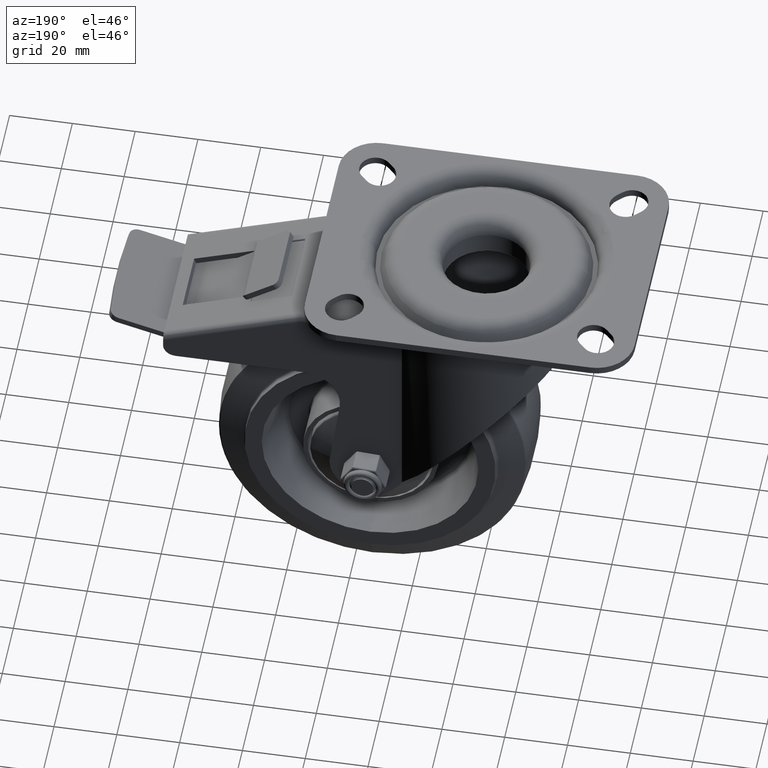
[diagram: clean part render]
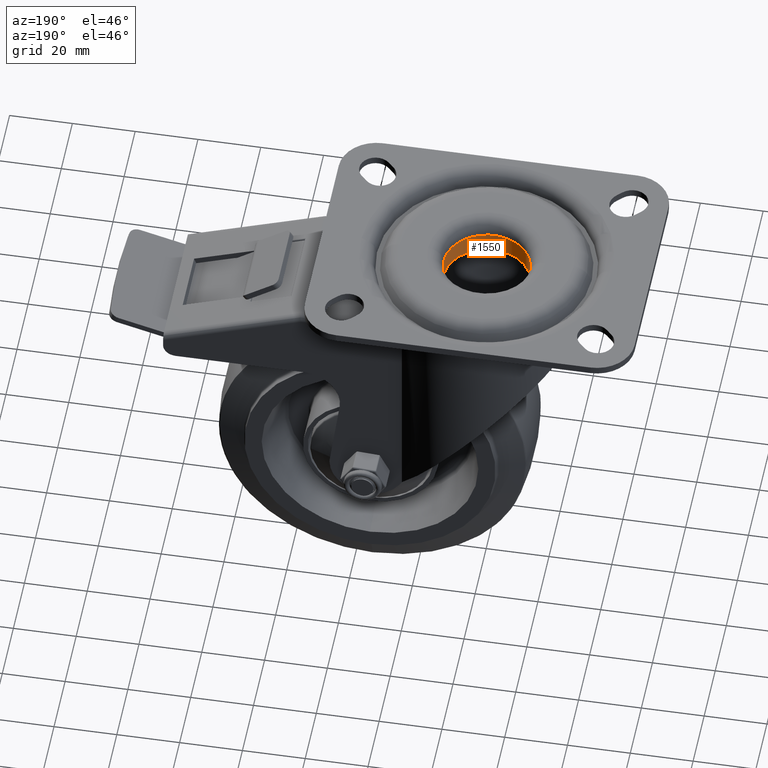
[diagram: same view with one face highlighted and labeled with its STEP entity id]
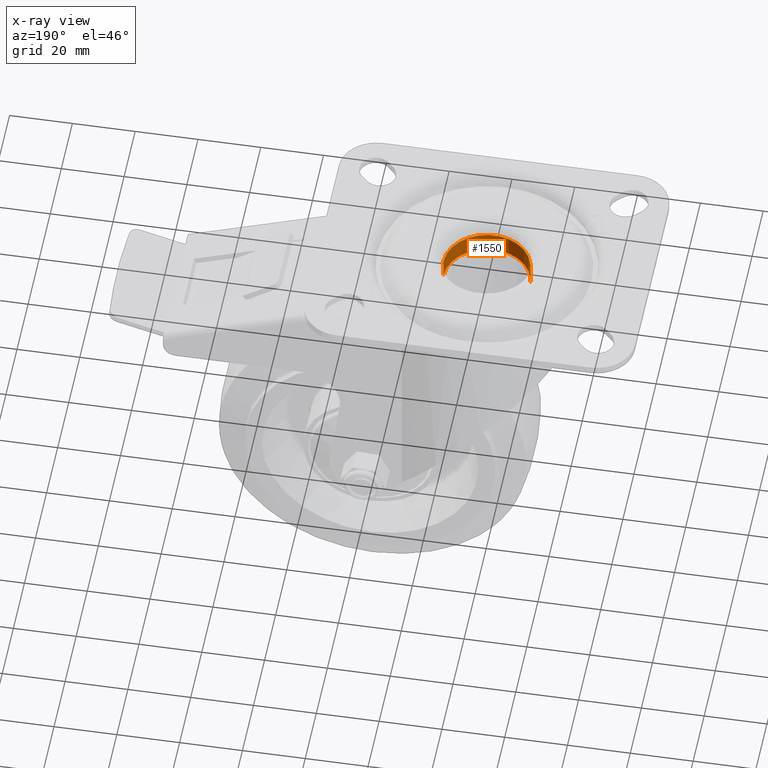
[diagram: x-ray of the same camera — body ghosted, the highlighted face saturated]
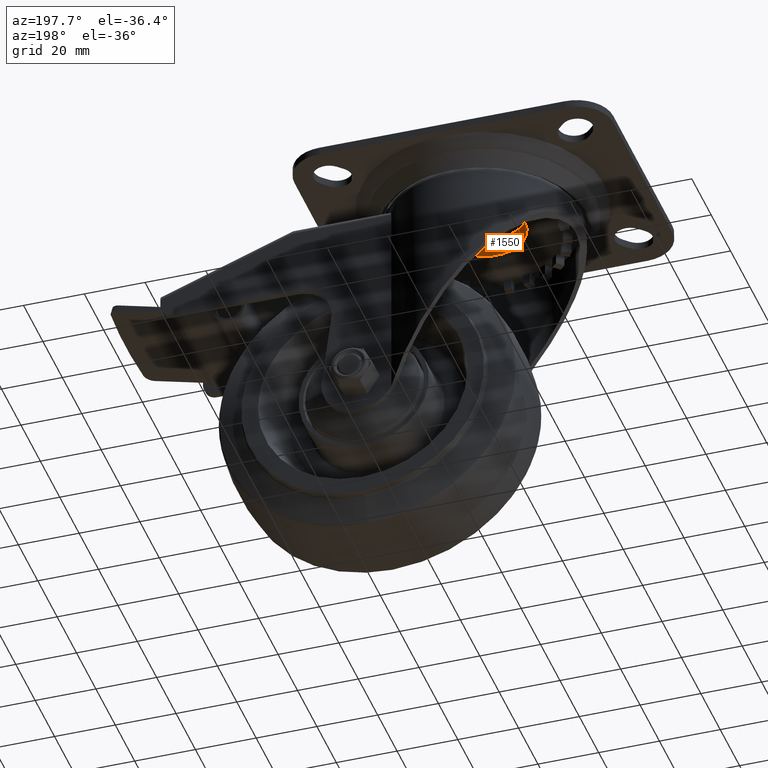
[diagram: same view with one face highlighted and labeled with its STEP entity id]
A machine part, auxiliary view. The second image highlights one B-rep face of the part: STEP entity #1550.
The next image is the same camera in x-ray: the body ghosted, the highlighted face saturated — about 0% of this face is hidden behind the body in this view.
A second angle (auxiliary view) of the same face is appended — the face is thin or edge-on in the first view.
In plain terms, the highlighted cylindrical surface (partial cylindrical patch) has radius 13.75 mm, axis along (0, 0, 1).
Its self-contained STEP definition (entity closure, byte-faithful):
#1550=ADVANCED_FACE('99:63487',(#2898),#2899,.F.);
#2898=FACE_OUTER_BOUND('',#5314,.T.);
#2899=CYLINDRICAL_SURFACE('',#5315,0.01375);
#5314=EDGE_LOOP('',(#13666,#13667,#13668,#13669));
#5315=AXIS2_PLACEMENT_3D('',#13670,#13671,#13672);
#13666=ORIENTED_EDGE('',*,*,#23246,.F.);
#13667=ORIENTED_EDGE('',*,*,#23247,.F.);
#13668=ORIENTED_EDGE('',*,*,#23248,.F.);
#13669=ORIENTED_EDGE('',*,*,#23249,.F.);
#13670=CARTESIAN_POINT('',(0.0,0.0,0.0));
#13671=DIRECTION('',(0.0,0.0,1.0));
#13672=DIRECTION('',(1.0,0.0,0.0));
#23246=EDGE_CURVE('',#26238,#26239,#26240,.T.);
#23247=EDGE_CURVE('99:64606',#26241,#26238,#26242,.T.);
#23248=EDGE_CURVE('',#26243,#26241,#26244,.T.);
#23249=EDGE_CURVE('99:64624',#26239,#26243,#26245,.T.);
#26238=VERTEX_POINT('',#31049);
#26239=VERTEX_POINT('',#31050);
#26240=LINE('',#31051,#31052);
#26241=VERTEX_POINT('',#31053);
#26242=CIRCLE('',#31054,0.01375);
#26243=VERTEX_POINT('',#31055);
#26244=LINE('',#31056,#31057);
#26245=CIRCLE('',#31058,0.01375);
#31049=CARTESIAN_POINT('',(0.01375,1.68388934882761E-18,-0.0115));
#31050=CARTESIAN_POINT('',(0.01375,-3.36777869765522E-18,-0.005));
#31051=CARTESIAN_POINT('',(0.01375,-1.68388934882761E-18,-0.00825));
#31052=VECTOR('',#41347,1.0);
#31053=CARTESIAN_POINT('',(-0.01375,-1.68388934882761E-18,-0.0115));
#31054=AXIS2_PLACEMENT_3D('',#41348,#41349,#41350);
#31055=CARTESIAN_POINT('',(-0.01375,1.68388934882761E-18,-0.005));
#31056=CARTESIAN_POINT('',(-0.01375,1.68388934882761E-18,-0.00825));
#31057=VECTOR('',#41351,1.0);
#31058=AXIS2_PLACEMENT_3D('',#41352,#41353,#41354);
#41347=DIRECTION('',(-0.0,0.0,1.0));
#41348=CARTESIAN_POINT('',(0.0,0.0,-0.0115));
#41349=DIRECTION('',(0.0,0.0,1.0));
#41350=DIRECTION('',(1.0,0.0,0.0));
#41351=DIRECTION('',(-0.0,0.0,-1.0));
#41352=CARTESIAN_POINT('',(0.0,0.0,-0.005));
#41353=DIRECTION('',(-0.0,0.0,-1.0));
#41354=DIRECTION('',(-1.0,1.22464679914735E-16,0.0));